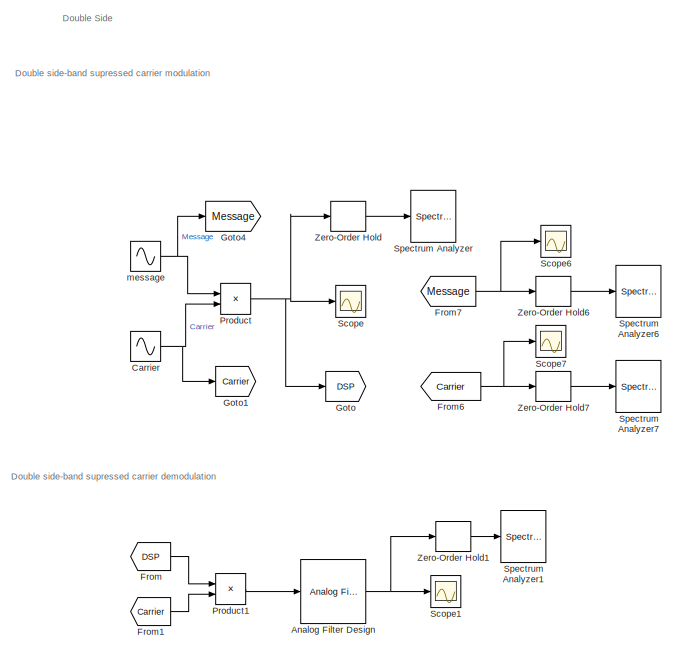
[diagram: root canvas - part 1/2, top left region]
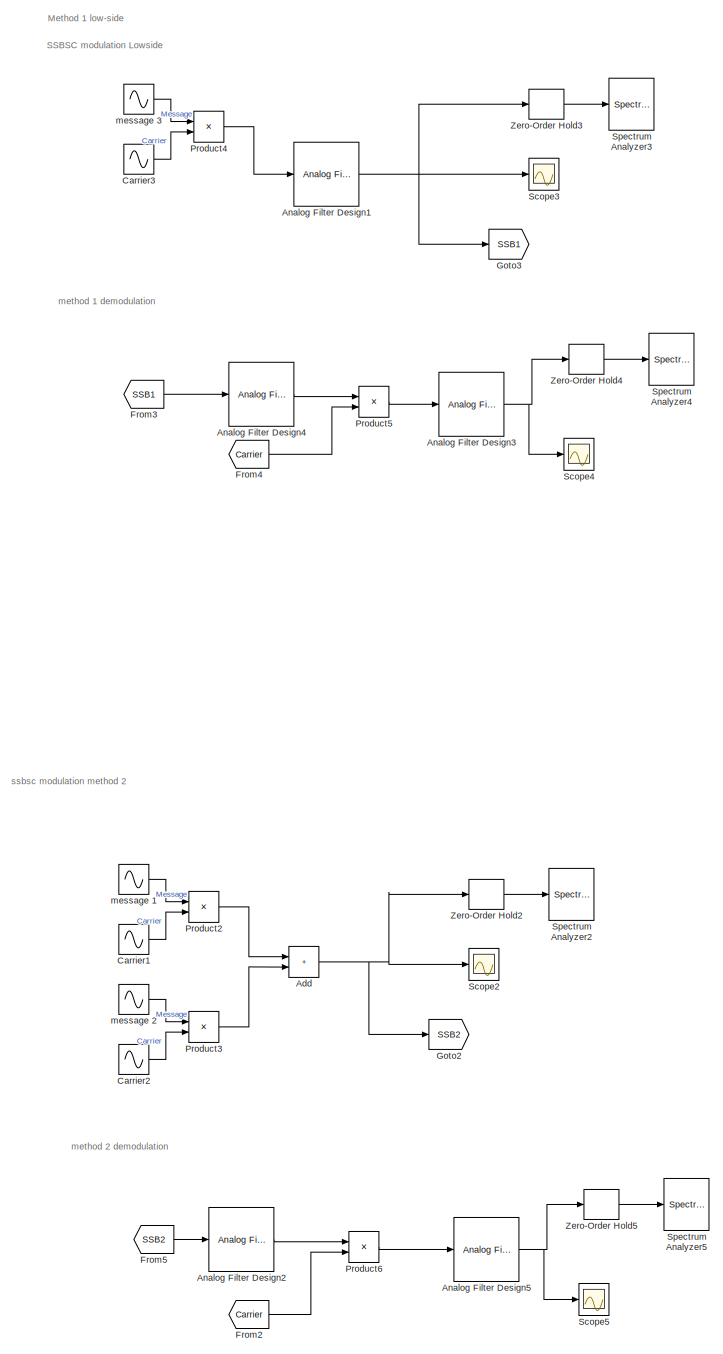
[diagram: root canvas - part 2/2, right side, full height]
MODEL slx_cdedda7399d0
KIND model
CONFIG AbsTol = auto
CONFIG EnableMultiTasking = off
CONFIG FixedStep = auto
CONFIG MaxStep = auto
CONFIG MinStep = auto
CONFIG RelTol = 1e-3
CONFIG SampleTimeConstraint = Unconstrained
CONFIG SolverName = ode23t
CONFIG StartTime = 0.0
CONFIG StopTime = 1
BLOCK [Sum] Add
  IconShape = rectangular
BLOCK [Reference] Analog Filter Design  REF=dspfdesign/Analog
Filter Design
  SourceBlock = dspfdesign/Analog\nFilter Design
  SourceType = Analog Filter Design
BLOCK [Reference] Analog Filter Design1  REF=dspfdesign/Analog
Filter Design
  SourceBlock = dspfdesign/Analog\nFilter Design
  SourceType = Analog Filter Design
BLOCK [Reference] Analog Filter Design2  REF=dspfdesign/Analog
Filter Design
  SourceBlock = dspfdesign/Analog\nFilter Design
  SourceType = Analog Filter Design
BLOCK [Reference] Analog Filter Design3  REF=dspfdesign/Analog
Filter Design
  SourceBlock = dspfdesign/Analog\nFilter Design
  SourceType = Analog Filter Design
BLOCK [Reference] Analog Filter Design4  REF=dspfdesign/Analog
Filter Design
  SourceBlock = dspfdesign/Analog\nFilter Design
  SourceType = Analog Filter Design
BLOCK [Reference] Analog Filter Design5  REF=dspfdesign/Analog
Filter Design
  SourceBlock = dspfdesign/Analog\nFilter Design
  SourceType = Analog Filter Design
BLOCK [Sin] Carrier
  Frequency = pi*2*15000
  SampleTime = 0
BLOCK [Sin] Carrier1
  Frequency = pi*2*15000
  SampleTime = 0
BLOCK [Sin] Carrier2
  Frequency = pi*2*15000
  SampleTime = 0
BLOCK [Sin] Carrier3
  Frequency = pi*2*15000
  SampleTime = 0
BLOCK [From] From
  GotoTag = DSP
BLOCK [From] From1
  GotoTag = Carrier
BLOCK [From] From2
  GotoTag = Carrier
BLOCK [From] From3
  GotoTag = SSB1
BLOCK [From] From4
  GotoTag = Carrier
BLOCK [From] From5
  GotoTag = SSB2
BLOCK [From] From6
  GotoTag = Carrier
BLOCK [From] From7
  GotoTag = Message
BLOCK [Goto] Goto
  GotoTag = DSP
BLOCK [Goto] Goto1
  GotoTag = Carrier
BLOCK [Goto] Goto2
  GotoTag = SSB2
BLOCK [Goto] Goto3
  GotoTag = SSB1
BLOCK [Goto] Goto4
  GotoTag = Message
BLOCK [Product] Product
BLOCK [Product] Product1
BLOCK [Product] Product2
BLOCK [Product] Product3
BLOCK [Product] Product4
BLOCK [Product] Product5
BLOCK [Product] Product6
BLOCK [Scope] Scope
  Floating = off
  NumInputPorts = 1
  ScopeSpecificationString = Simulink.scopes.TimeScopeBlockCfg('CurrentConfiguration', extmgr.ConfigurationSet(extmgr.Configuration('Core','General UI',true,'FigureColor',[1 1 1]),extmgr.Configuration('Core','Source UI',true),extmgr.Configuration('Sources','WiredSimulink',true),extmgr.Configuration('Visuals','Time Domain',true,'SerializedDisplays',{struct('MinYLimReal','-1.0417','MaxYLimReal','1.06019','YLabelReal','','MinYLi...<+1677ch>
BLOCK [Scope] Scope1
  Floating = off
  NumInputPorts = 1
  ScopeSpecificationString = Simulink.scopes.TimeScopeBlockCfg('CurrentConfiguration', extmgr.ConfigurationSet(extmgr.Configuration('Core','General UI',true),extmgr.Configuration('Core','Source UI',true),extmgr.Configuration('Sources','WiredSimulink',true,'DataLoggingVariableName','ScopeData1'),extmgr.Configuration('Visuals','Time Domain',true,'SerializedDisplays',{struct('MinYLimReal','-0.53454','MaxYLimReal','0.54374','YLab...<+1669ch>
BLOCK [Scope] Scope2
  Floating = off
  NumInputPorts = 1
  ScopeSpecificationString = Simulink.scopes.TimeScopeBlockCfg('CurrentConfiguration', extmgr.ConfigurationSet(extmgr.Configuration('Core','General UI',true),extmgr.Configuration('Core','Source UI',true),extmgr.Configuration('Sources','WiredSimulink',true,'DataLoggingVariableName','ScopeData2'),extmgr.Configuration('Visuals','Time Domain',true,'SerializedDisplays',{struct('MinYLimReal','-2.08339','MaxYLimReal','2.12038','YLab...<+1681ch>
BLOCK [Scope] Scope3
  Floating = off
  NumInputPorts = 1
  ScopeSpecificationString = Simulink.scopes.TimeScopeBlockCfg('CurrentConfiguration', extmgr.ConfigurationSet(extmgr.Configuration('Core','General UI',true),extmgr.Configuration('Core','Source UI',true),extmgr.Configuration('Sources','WiredSimulink',true,'DataLoggingVariableName','ScopeData3'),extmgr.Configuration('Visuals','Time Domain',true,'SerializedDisplays',{struct('MinYLimReal','-1.10909','MaxYLimReal','1.09322','YLab...<+1670ch>
BLOCK [Scope] Scope4
  Floating = off
  NumInputPorts = 1
  ScopeSpecificationString = Simulink.scopes.TimeScopeBlockCfg('CurrentConfiguration', extmgr.ConfigurationSet(extmgr.Configuration('Core','General UI',true),extmgr.Configuration('Core','Source UI',true),extmgr.Configuration('Sources','WiredSimulink',true,'DataLoggingVariableName','ScopeData4'),extmgr.Configuration('Visuals','Time Domain',true,'SerializedDisplays',{struct('MinYLimReal','-0.45124','MaxYLimReal','0.46533','YLab...<+1685ch>
BLOCK [Scope] Scope5
  Floating = off
  NumInputPorts = 1
  ScopeSpecificationString = Simulink.scopes.TimeScopeBlockCfg('CurrentConfiguration', extmgr.ConfigurationSet(extmgr.Configuration('Core','General UI',true),extmgr.Configuration('Core','Source UI',true),extmgr.Configuration('Sources','WiredSimulink',true,'DataLoggingVariableName','ScopeData5'),extmgr.Configuration('Visuals','Time Domain',true,'SerializedDisplays',{struct('MinYLimReal','-0.53133','MaxYLimReal','0.54421','YLab...<+1716ch>
BLOCK [Scope] Scope6
  Floating = off
  NumInputPorts = 1
  ScopeSpecificationString = Simulink.scopes.TimeScopeBlockCfg('CurrentConfiguration', extmgr.ConfigurationSet(extmgr.Configuration('Core','General UI',true),extmgr.Configuration('Core','Source UI',true),extmgr.Configuration('Sources','WiredSimulink',true,'DataLoggingVariableName','ScopeData1'),extmgr.Configuration('Visuals','Time Domain',true,'SerializedDisplays',{struct('MinYLimReal','-1.0417','MaxYLimReal','1.06019','YLabe...<+1703ch>
BLOCK [Scope] Scope7
  Floating = off
  NumInputPorts = 1
  ScopeSpecificationString = Simulink.scopes.TimeScopeBlockCfg('CurrentConfiguration', extmgr.ConfigurationSet(extmgr.Configuration('Core','General UI',true),extmgr.Configuration('Core','Source UI',true),extmgr.Configuration('Sources','WiredSimulink',true,'DataLoggingVariableName','ScopeData2'),extmgr.Configuration('Visuals','Time Domain',true,'SerializedDisplays',{struct('MinYLimReal','-1.0417','MaxYLimReal','1.06019','YLabe...<+1703ch>
BLOCK [SpectrumAnalyzer] Spectrum Analyzer
  AllowFFTLengthLessThanSamplesPerUpdate = on
  AveragingMethod = Running
  AxesScaling = Manual
  ChannelNames = ["modulated signal"]
  DefaultConfigurationName = spbscopes.SpectrumAnalyzerBlockCfg
  FrequencyInputRBWFromPort = 0
  FrequencyInputRBWPort = 0
  FrequencyVectorFromPort = 0
  FrequencyVectorPort = 0
  GraphicalSettings = {"GraphicalSettings":{"Style":{"BackgroundColor":[1,1,1],"AxesColor":[1,1,1],"LabelsColor":[0.6862745098039216,0.6862745098039216,0.6862745098039216],"PreserveColors":false,"Visible":[true],"LineStyle":["-"],"LineColor":[[0.06666666666666667,0.44313725490196076,0.7450980392156863]],"LineWidth":[1],"Marker":["none"],"FontSize":"small"},"Cursors":{"Enabled":false,"XLocation":[2,8],"YLocation":[2,8],...<+854ch>  <repeated x4 — deduplicated; at blocks: Spectrum Analyzer, Spectrum Analyzer3, Spectrum Analyzer4, Spectrum Analyzer6>
  IsFrequencyInputMode = 0
  Method = Welch
  OpenAtSimulationStart = off
  SampleRate = 150000
  ScopeFrameLocation = window
  ScopeSpecificationString = spbscopes.SpectrumAnalyzerBlockCfg('CurrentConfiguration', extmgr.ConfigurationSet(extmgr.Configuration('Core','General UI',true),extmgr.Configuration('Core','Source UI',true),extmgr.Configuration('Sources','WiredSimulink',true),extmgr.Configuration('Visuals','Spectrum',true,'AxesProperties',struct('Color',{[0 0 0],[0 0 0]},'XColor',{[0.686274509803922 0.686274509803922 0.686274509803922],[0.68627...<+2109ch>
  ShowLegend = on
  Span = 150000
  SpectrumType = RMS
  SpectrumUnits = Vrms
  StartFrequency = -75000
  StopFrequency = 75000
  WasSavedAsWebScope = on
  WindowPosition = [1.000000,1.000000,1280.000000,697.000000,]
  YLimits = [-0.026127601930479721348,0.23514841919442297513]
BLOCK [SpectrumAnalyzer] Spectrum Analyzer1
  AllowFFTLengthLessThanSamplesPerUpdate = on
  AveragingMethod = Running
  AxesScaling = Manual
  ChannelNames = ["demodulated signal"]
  DefaultConfigurationName = spbscopes.SpectrumAnalyzerBlockCfg
  FrequencyInputRBWFromPort = 0
  FrequencyInputRBWPort = 0
  FrequencyVectorFromPort = 0
  FrequencyVectorPort = 0
  GraphicalSettings = {"GraphicalSettings":{"Style":{"BackgroundColor":[0.12941176470588237,0.12941176470588237,0.12941176470588237],"AxesColor":[0,0,0],"LabelsColor":[0.6862745098039216,0.6862745098039216,0.6862745098039216],"PreserveColors":false,"Visible":[true],"LineStyle":["-"],"LineColor":[[1,0.9098039215686274,0.39215686274509803]],"LineWidth":[1],"Marker":["none"],"FontSize":"small"},"Cursors":{"Enabled":false,...<+890ch>  <repeated x4 — deduplicated; at blocks: Spectrum Analyzer1, Spectrum Analyzer2, Spectrum Analyzer5, Spectrum Analyzer7>
  IsFrequencyInputMode = 0
  Method = Welch
  OpenAtSimulationStart = off
  ScopeFrameLocation = window
  ScopeSpecificationString = spbscopes.SpectrumAnalyzerBlockCfg('CurrentConfiguration', extmgr.ConfigurationSet(extmgr.Configuration('Core','General UI',true),extmgr.Configuration('Core','Source UI',true),extmgr.Configuration('Sources','WiredSimulink',true),extmgr.Configuration('Visuals','Spectrum',true,'AxesProperties',struct('Color',{[0 0 0],[0 0 0]},'XColor',{[0.686274509803922 0.686274509803922 0.686274509803922],[0.68627...<+2197ch>
  ShowLegend = on
  SpectrumType = RMS
  SpectrumUnits = Vrms
  WasSavedAsWebScope = on
  WindowPosition = [1.000000,1.000000,1280.000000,697.000000,]
  YLimits = [-0.023914219367317544884,0.21522797619659583823]
BLOCK [SpectrumAnalyzer] Spectrum Analyzer2
  AllowFFTLengthLessThanSamplesPerUpdate = on
  AveragingMethod = Running
  AxesScaling = Manual
  ChannelNames = ["modulated single side"]
  DefaultConfigurationName = spbscopes.SpectrumAnalyzerBlockCfg
  FrequencyInputRBWFromPort = 0
  FrequencyInputRBWPort = 0
  FrequencyVectorFromPort = 0
  FrequencyVectorPort = 0
  IsFrequencyInputMode = 0
  Method = Welch
  OpenAtSimulationStart = off
  SampleRate = 150000
  ScopeFrameLocation = window
  ScopeSpecificationString = spbscopes.SpectrumAnalyzerBlockCfg('CurrentConfiguration', extmgr.ConfigurationSet(extmgr.Configuration('Core','General UI',true),extmgr.Configuration('Core','Source UI',true),extmgr.Configuration('Sources','WiredSimulink',true),extmgr.Configuration('Visuals','Spectrum',true,'AxesProperties',struct('Color',{[0 0 0],[0 0 0]},'XColor',{[0.686274509803922 0.686274509803922 0.686274509803922],[0.68627...<+2162ch>
  ShowLegend = on
  Span = 150000
  SpectrumType = RMS
  SpectrumUnits = Vrms
  StartFrequency = -75000
  StopFrequency = 75000
  WasSavedAsWebScope = on
  WindowPosition = [1.000000,1.000000,1280.000000,697.000000,]
  YLimits = [-0.052253348060846652179,0.4702801389579952529]
BLOCK [SpectrumAnalyzer] Spectrum Analyzer3
  AllowFFTLengthLessThanSamplesPerUpdate = on
  AveragingMethod = Running
  ChannelNames = ["Single side supressed carrier "]
  DefaultConfigurationName = spbscopes.SpectrumAnalyzerBlockCfg
  FrequencyInputRBWFromPort = 0
  FrequencyInputRBWPort = 0
  FrequencyVectorFromPort = 0
  FrequencyVectorPort = 0
  IsFrequencyInputMode = 0
  Method = Welch
  OpenAtSimulationStart = off
  SampleRate = 150000
  ScopeFrameLocation = window
  ScopeSpecificationString = spbscopes.SpectrumAnalyzerBlockCfg('CurrentConfiguration', extmgr.ConfigurationSet(extmgr.Configuration('Core','General UI',true),extmgr.Configuration('Core','Source UI',true),extmgr.Configuration('Sources','WiredSimulink',true),extmgr.Configuration('Visuals','Spectrum',true,'AxesProperties',struct('Color',{[0 0 0],[0 0 0]},'XColor',{[0.686274509803922 0.686274509803922 0.686274509803922],[0.68627...<+3514ch>
  ShowLegend = on
  Span = 150000
  SpectrumType = RMS
  SpectrumUnits = Vrms
  StartFrequency = -75000
  StopFrequency = 75000
  WasSavedAsWebScope = on
  WindowPosition = [-128.000000,-14.000000,1282.000000,700.000000,]
  YLimits = [-0.02441151,0.21970362]
BLOCK [SpectrumAnalyzer] Spectrum Analyzer4
  AllowFFTLengthLessThanSamplesPerUpdate = on
  AveragingMethod = Running
  AxesScaling = Manual
  ChannelNames = ["demodulated signal"]
  DefaultConfigurationName = spbscopes.SpectrumAnalyzerBlockCfg
  FrequencyInputRBWFromPort = 0
  FrequencyInputRBWPort = 0
  FrequencyVectorFromPort = 0
  FrequencyVectorPort = 0
  IsFrequencyInputMode = 0
  Method = Welch
  OpenAtSimulationStart = off
  SampleRate = 150000
  ScopeFrameLocation = window
  ScopeSpecificationString = spbscopes.SpectrumAnalyzerBlockCfg('CurrentConfiguration', extmgr.ConfigurationSet(extmgr.Configuration('Core','General UI',true),extmgr.Configuration('Core','Source UI',true),extmgr.Configuration('Sources','WiredSimulink',true),extmgr.Configuration('Visuals','Spectrum',true,'AxesProperties',struct('Color',{[0 0 0],[0 0 0]},'XColor',{[0.686274509803922 0.686274509803922 0.686274509803922],[0.68627...<+2113ch>
  ShowLegend = on
  Span = 150000
  SpectrumType = RMS
  SpectrumUnits = Vrms
  StartFrequency = -75000
  StopFrequency = 75000
  WasSavedAsWebScope = on
  WindowPosition = [1.000000,1.000000,1280.000000,697.000000,]
  YLimits = [-0.012458084977529709433,0.11212276483722737053]
BLOCK [SpectrumAnalyzer] Spectrum Analyzer5
  AllowFFTLengthLessThanSamplesPerUpdate = on
  AveragingMethod = Running
  AxesScaling = Manual
  ChannelNames = ["demodulated signal"]
  DefaultConfigurationName = spbscopes.SpectrumAnalyzerBlockCfg
  FrequencyInputRBWFromPort = 0
  FrequencyInputRBWPort = 0
  FrequencyVectorFromPort = 0
  FrequencyVectorPort = 0
  IsFrequencyInputMode = 0
  Method = Welch
  OpenAtSimulationStart = off
  SampleRate = 150000
  ScopeFrameLocation = window
  ScopeSpecificationString = spbscopes.SpectrumAnalyzerBlockCfg('CurrentConfiguration', extmgr.ConfigurationSet(extmgr.Configuration('Core','General UI',true),extmgr.Configuration('Core','Source UI',true),extmgr.Configuration('Sources','WiredSimulink',true),extmgr.Configuration('Visuals','Spectrum',true,'AxesProperties',struct('Color',{[0 0 0],[0 0 0]},'XColor',{[0.686274509803922 0.686274509803922 0.686274509803922],[0.68627...<+2147ch>
  ShowLegend = on
  Span = 150000
  SpectrumType = RMS
  SpectrumUnits = Vrms
  StartFrequency = -75000
  StopFrequency = 75000
  WasSavedAsWebScope = on
  WindowPosition = [1.000000,1.000000,1280.000000,697.000000,]
  YLimits = [-0.025479003903654467295,0.22931103517174417084]
BLOCK [SpectrumAnalyzer] Spectrum Analyzer6
  AllowFFTLengthLessThanSamplesPerUpdate = on
  AveragingMethod = Running
  AxesScaling = Manual
  ChannelNames = ["message in frequency "]
  DefaultConfigurationName = spbscopes.SpectrumAnalyzerBlockCfg
  FrequencyInputRBWFromPort = 0
  FrequencyInputRBWPort = 0
  FrequencyVectorFromPort = 0
  FrequencyVectorPort = 0
  IsFrequencyInputMode = 0
  Method = Welch
  OpenAtSimulationStart = off
  ScopeFrameLocation = window
  ScopeSpecificationString = spbscopes.SpectrumAnalyzerBlockCfg('CurrentConfiguration', extmgr.ConfigurationSet(extmgr.Configuration('Core','General UI',true),extmgr.Configuration('Core','Source UI',true),extmgr.Configuration('Sources','WiredSimulink',true),extmgr.Configuration('Visuals','Spectrum',true,'AxesProperties',struct('Color',{[0 0 0],[0 0 0]},'XColor',{[0.686274509803922 0.686274509803922 0.686274509803922],[0.68627...<+2201ch>
  ShowLegend = on
  SpectrumType = RMS
  SpectrumUnits = Vrms
  WasSavedAsWebScope = on
  WindowPosition = [1.000000,1.000000,1280.000000,697.000000,]
  YLimits = [-0.047864785119498619304,0.43078306607548871865]
BLOCK [SpectrumAnalyzer] Spectrum Analyzer7
  AllowFFTLengthLessThanSamplesPerUpdate = on
  AveragingMethod = Running
  AxesScaling = Manual
  ChannelNames = ["Carrier in Frequency"]
  DefaultConfigurationName = spbscopes.SpectrumAnalyzerBlockCfg
  FrequencyInputRBWFromPort = 0
  FrequencyInputRBWPort = 0
  FrequencyVectorFromPort = 0
  FrequencyVectorPort = 0
  IsFrequencyInputMode = 0
  Method = Welch
  OpenAtSimulationStart = off
  SampleRate = 150000
  ScopeFrameLocation = window
  ScopeSpecificationString = spbscopes.SpectrumAnalyzerBlockCfg('CurrentConfiguration', extmgr.ConfigurationSet(extmgr.Configuration('Core','General UI',true),extmgr.Configuration('Core','Source UI',true),extmgr.Configuration('Sources','WiredSimulink',true),extmgr.Configuration('Visuals','Spectrum',true,'AxesProperties',struct('Color',{[0 0 0],[0 0 0]},'XColor',{[0.686274509803922 0.686274509803922 0.686274509803922],[0.68627...<+2142ch>
  ShowLegend = on
  Span = 150000
  SpectrumType = RMS
  SpectrumUnits = Vrms
  StartFrequency = -75000
  StopFrequency = 75000
  WasSavedAsWebScope = on
  WindowPosition = [-128.000000,-14.000000,1282.000000,700.000000,]
  YLimits = [-0.056311512071850283734,0.5068036174957696316]
BLOCK [ZeroOrderHold] Zero-Order Hold
  SampleTime = 1/(10*15e3)
BLOCK [ZeroOrderHold] Zero-Order Hold1
  SampleTime = 1/(10*1e3)
BLOCK [ZeroOrderHold] Zero-Order Hold2
  SampleTime = -1
BLOCK [ZeroOrderHold] Zero-Order Hold3
  SampleTime = -1
BLOCK [ZeroOrderHold] Zero-Order Hold4
  SampleTime = -1
BLOCK [ZeroOrderHold] Zero-Order Hold5
  SampleTime = -1
BLOCK [ZeroOrderHold] Zero-Order Hold6
  SampleTime = 1/(10*1e3)
BLOCK [ZeroOrderHold] Zero-Order Hold7
  SampleTime = -1
BLOCK [Sin] message 
  Amplitude = 0.85
  Frequency = pi*2*1000
  SampleTime = 0
BLOCK [Sin] message 1
  Amplitude = 0.85
  Frequency = pi*2*1000
  SampleTime = 0
BLOCK [Sin] message 2
  Amplitude = 0.85
  Frequency = pi*2*1000
  SampleTime = 0
BLOCK [Sin] message 3
  Amplitude = 0.85
  Frequency = pi*2*1000
  SampleTime = 0
ANNOTATION (root): Double Side
ANNOTATION (root): Double side-band supressed carrier demodulation
ANNOTATION (root): Double side-band supressed carrier modulation
ANNOTATION (root): Method 1 low-side
ANNOTATION (root): SSBSC modulation Lowside
ANNOTATION (root): method 1 demodulation
ANNOTATION (root): method 2 demodulation
ANNOTATION (root): ssbsc modulation method 2
NET Add:1 -> Goto2:1, Scope2:1, Zero-Order Hold2:1
NET Analog Filter Design1:1 -> Goto3:1, Scope3:1, Zero-Order Hold3:1
LINE Analog Filter Design2:1 -> Product6:1
NET Analog Filter Design3:1 -> Scope4:1, Zero-Order Hold4:1
LINE Analog Filter Design4:1 -> Product5:1
NET Analog Filter Design5:1 -> Scope5:1, Zero-Order Hold5:1
NET Analog Filter Design:1 -> Scope1:1, Zero-Order Hold1:1
LINE Carrier1:1 -> Product2:2
LINE Carrier2:1 -> Product3:2
LINE Carrier3:1 -> Product4:2
NET Carrier:1 -> Goto1:1, Product:2
LINE From1:1 -> Product1:2
LINE From2:1 -> Product6:2
LINE From3:1 -> Analog Filter Design4:1
LINE From4:1 -> Product5:2
LINE From5:1 -> Analog Filter Design2:1
NET From6:1 -> Scope7:1, Zero-Order Hold7:1
NET From7:1 -> Scope6:1, Zero-Order Hold6:1
LINE From:1 -> Product1:1
LINE Product1:1 -> Analog Filter Design:1
LINE Product2:1 -> Add:1
LINE Product3:1 -> Add:2
LINE Product4:1 -> Analog Filter Design1:1
LINE Product5:1 -> Analog Filter Design3:1
LINE Product6:1 -> Analog Filter Design5:1
NET Product:1 -> Goto:1, Scope:1, Zero-Order Hold:1
LINE Zero-Order Hold1:1 -> Spectrum Analyzer1:1
LINE Zero-Order Hold2:1 -> Spectrum Analyzer2:1
LINE Zero-Order Hold3:1 -> Spectrum Analyzer3:1
LINE Zero-Order Hold4:1 -> Spectrum Analyzer4:1
LINE Zero-Order Hold5:1 -> Spectrum Analyzer5:1
LINE Zero-Order Hold6:1 -> Spectrum Analyzer6:1
LINE Zero-Order Hold7:1 -> Spectrum Analyzer7:1
LINE Zero-Order Hold:1 -> Spectrum Analyzer:1
LINE message 1:1 -> Product2:1
LINE message 2:1 -> Product3:1
LINE message 3:1 -> Product4:1
NET message :1 -> Goto4:1, Product:1
note: NET lines group one-source signal fan-out (src -> all destinations, sorted); 1:1 wires keep LINE
